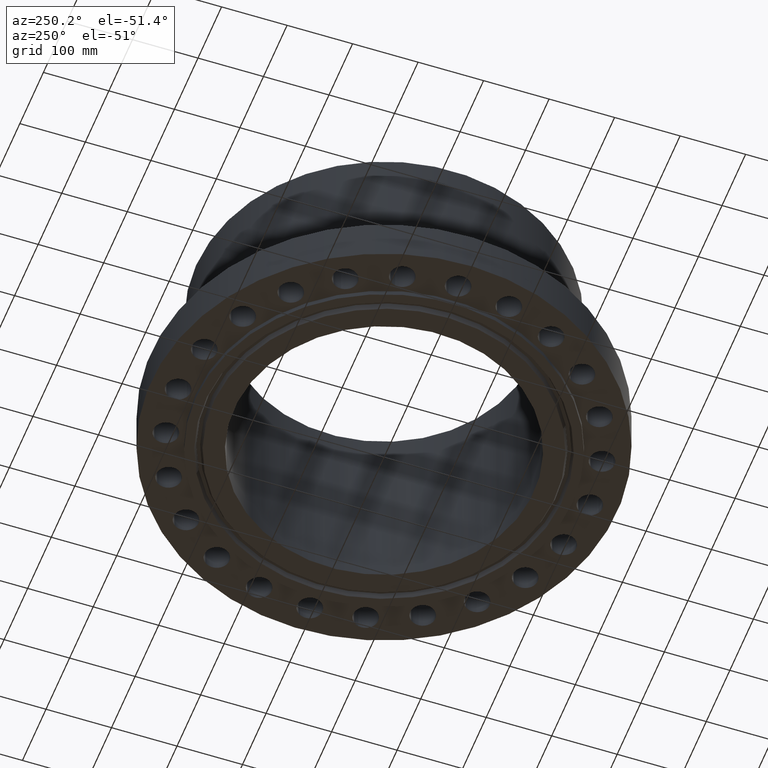
[diagram: clean part render]
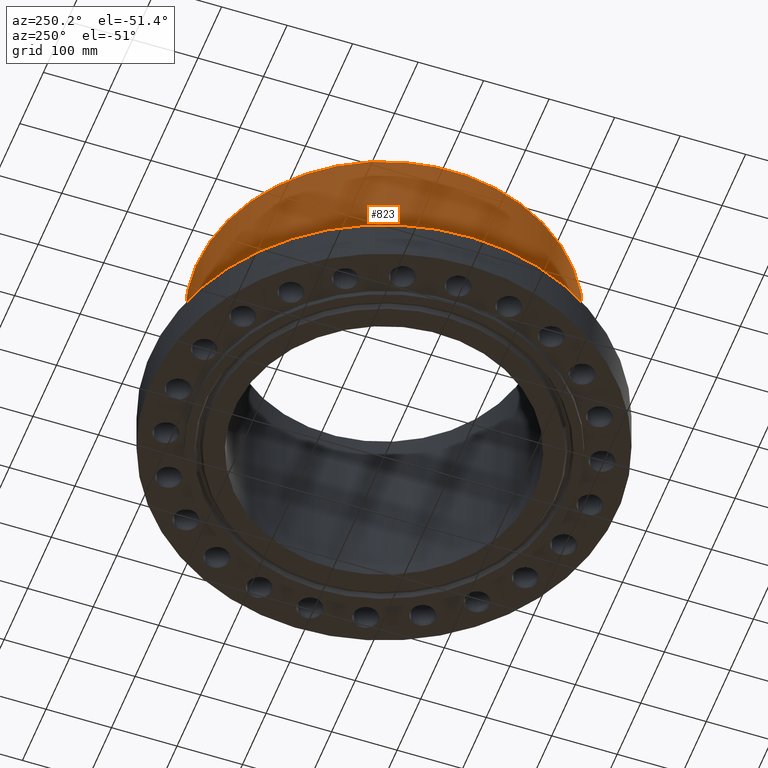
[diagram: same view with one face highlighted and labeled with its STEP entity id]
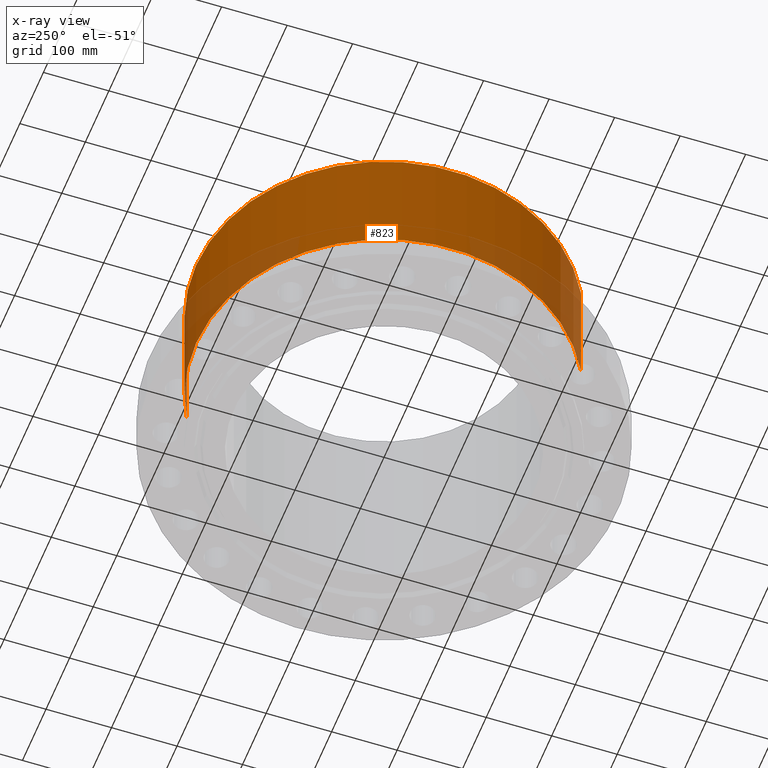
[diagram: x-ray of the same camera — body ghosted, the highlighted face saturated]
A machine part, auxiliary view. The second image highlights one B-rep face of the part: STEP entity #823.
The next image is the same camera in x-ray: the body ghosted, the highlighted face saturated — about 23% of this face is hidden behind the body in this view.
In plain terms, the highlighted cylindrical surface (partial cylindrical patch) has radius 286.512 mm, axis along (0, 0, -1).
Its self-contained STEP definition (entity closure, byte-faithful):
#771=AXIS2_PLACEMENT_3D('Circle Axis2P3D',#769,#770,$) ;
#784=AXIS2_PLACEMENT_3D('Cylinder Axis2P3D',#781,#782,#783) ;
#814=AXIS2_PLACEMENT_3D('Circle Axis2P3D',#812,#813,$) ;
#747=CARTESIAN_POINT('Vertex',(5.40792007548,9.89913129816,4.69033320999)) ;
#754=CARTESIAN_POINT('Vertex',(-5.40792007548,-9.89913129816,4.69033320999)) ;
#769=CARTESIAN_POINT('Axis2P3D Location',(0.,0.,4.69033320999)) ;
#781=CARTESIAN_POINT('Axis2P3D Location',(0.,0.,5.71850000002)) ;
#786=CARTESIAN_POINT('Line Origine',(5.40792007548,9.89913129816,8.22016660502)) ;
#790=CARTESIAN_POINT('Vertex',(5.40792007548,9.89913129816,11.75)) ;
#797=CARTESIAN_POINT('Vertex',(-5.40792007548,-9.89913129816,11.75)) ;
#800=CARTESIAN_POINT('Line Origine',(-5.40792007548,-9.89913129816,8.22016660502)) ;
#812=CARTESIAN_POINT('Axis2P3D Location',(0.,0.,11.75)) ;
#770=DIRECTION('Axis2P3D Direction',(-0.,0.,0.0393700787402)) ;
#782=DIRECTION('Axis2P3D Direction',(0.,0.,-0.0393700787402)) ;
#783=DIRECTION('Axis2P3D XDirection',(-0.0188750212049,-0.0345504945626,0.)) ;
#787=DIRECTION('Vector Direction',(0.,0.,-0.0393700787402)) ;
#801=DIRECTION('Vector Direction',(0.,0.,-0.0393700787402)) ;
#813=DIRECTION('Axis2P3D Direction',(0.,0.,-0.0393700787402)) ;
#788=VECTOR('Line Direction',#787,0.0393700787402) ;
#802=VECTOR('Line Direction',#801,0.0393700787402) ;
#818=ORIENTED_EDGE('',*,*,#773,.F.) ;
#819=ORIENTED_EDGE('',*,*,#804,.T.) ;
#820=ORIENTED_EDGE('',*,*,#816,.T.) ;
#821=ORIENTED_EDGE('',*,*,#792,.F.) ;
#823=ADVANCED_FACE('PartBody',(#822),#785,.T.) ;
#772=CIRCLE('generated circle',#771,11.28) ;
#815=CIRCLE('generated circle',#814,11.28) ;
#785=CYLINDRICAL_SURFACE('generated cylinder',#784,11.28) ;
#773=EDGE_CURVE('',#755,#748,#772,.F.) ;
#792=EDGE_CURVE('',#748,#791,#789,.F.) ;
#804=EDGE_CURVE('',#755,#798,#803,.F.) ;
#816=EDGE_CURVE('',#798,#791,#815,.T.) ;
#817=EDGE_LOOP('',(#818,#819,#820,#821)) ;
#822=FACE_OUTER_BOUND('',#817,.T.) ;
#789=LINE('Line',#786,#788) ;
#803=LINE('Line',#800,#802) ;
#748=VERTEX_POINT('',#747) ;
#755=VERTEX_POINT('',#754) ;
#791=VERTEX_POINT('',#790) ;
#798=VERTEX_POINT('',#797) ;